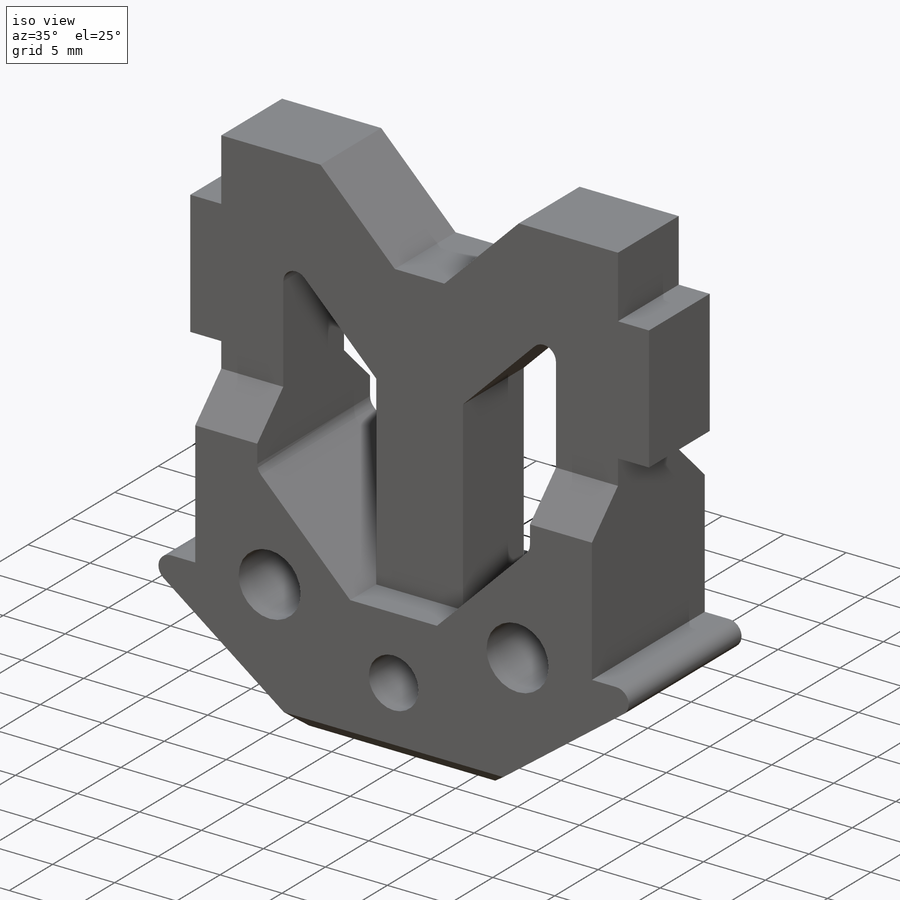
[diagram: iso view]
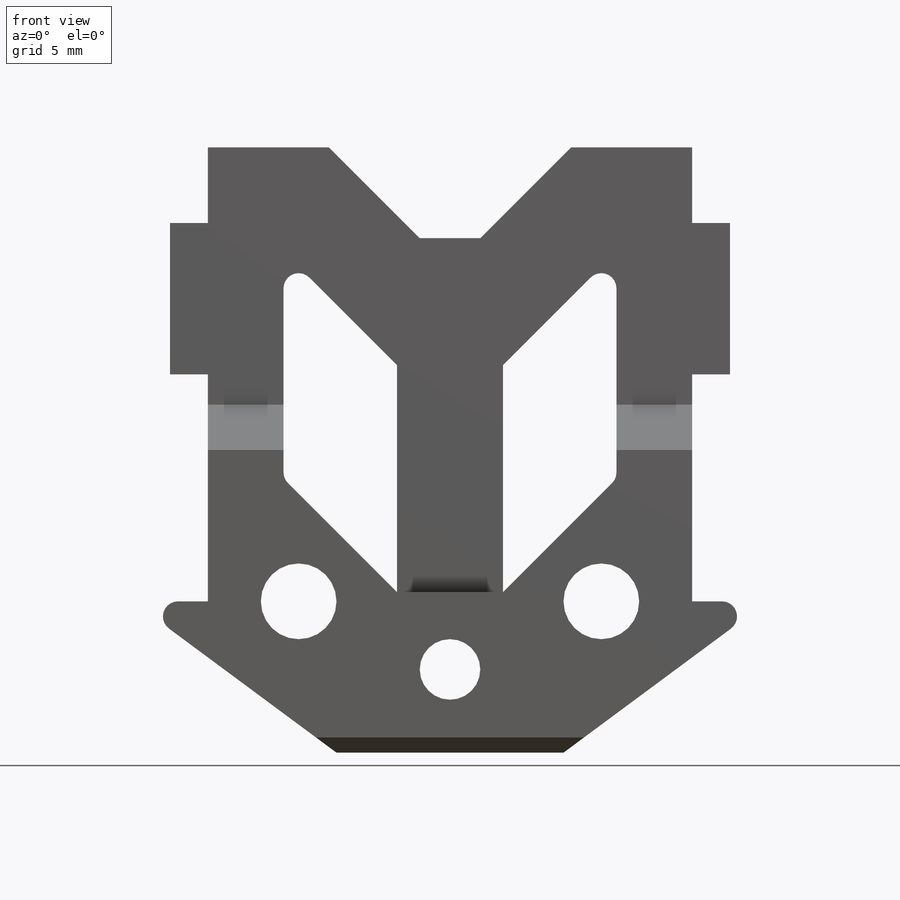
[diagram: front view]
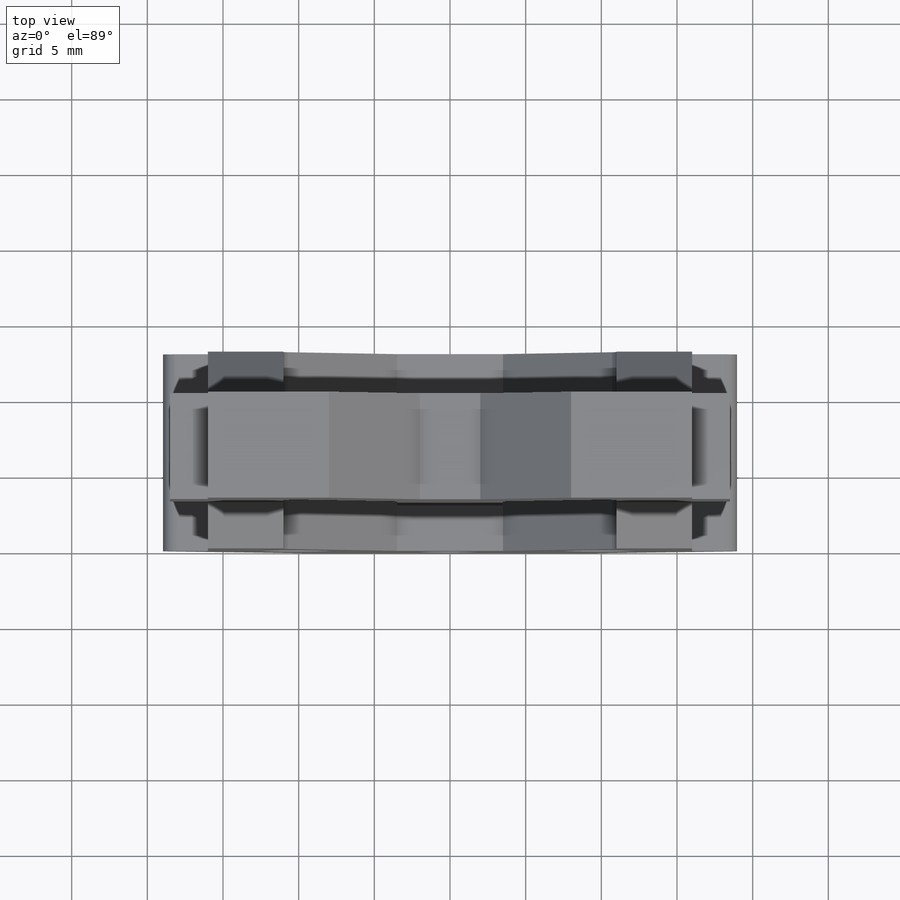
[diagram: top view]
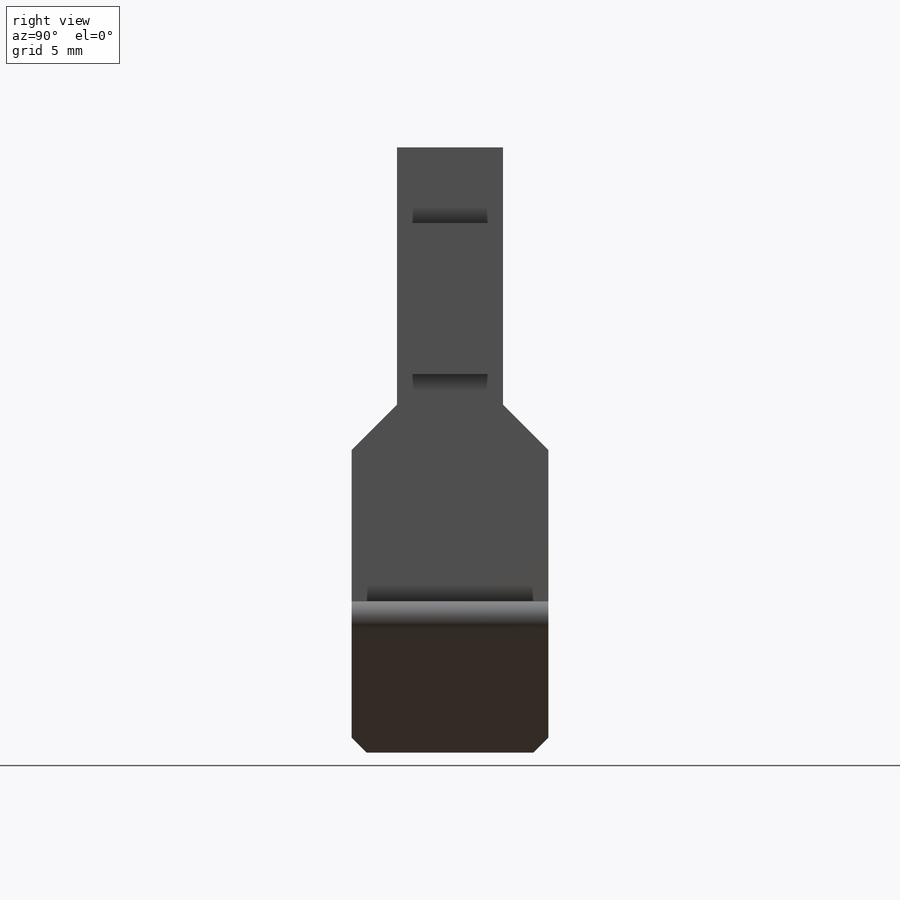
[diagram: right view]
SOLIDWORKS PART (.sldprt)
format: sldprt  version: not decoded by parser v0  size: 369,664 bytes
history: native  units: mm
features: sketch x7, cut_extrude x5, plane x3, extrude x2, fillet x2, material x1, chamfer x1 (+10 scaffold rows collapsed)
feature tree (31):
  scaffold x10  (default folders/planes/origin — collapsed)
  material  "Material <not specified>"
  plane  "Plan de face"
  plane  "Plan de dessus"
  plane  "Plan de droite"
  sketch  "Esquisse1"  dims[c1.D1=32.0mm c1.D2=32.0mm c2.D1=5.0mm c2.D3=~6.017531mm c3.D3=135.0deg c3.D4=15.0mm c3.D5=10.0mm c3.D6=32.0mm c4.D3=5.0mm c4.D2=~9.327971mm c5.D2=135.0deg c5.D3=8.0mm c5.D7=8.0mm c5.D8=4.0mm c5.D9=30.0mm c5.D10=2.5mm c5.D11=10.0mm c5.D12=15.0mm]
  extrude  "Boss.-Extru.1"  Depth=7mm
  sketch  "Esquisse2"  dims[D2=20.0mm D1=0.0mm]
  extrude  "Boss.-Extru.2"  Depth=3mm
  sketch  "Esquisse3"  dims[c1.D1=7.0mm c1.D2=5.0mm c1.D3=7.0mm c1.D4=15.0mm c2.D3=7.0mm c2.D2=5.0mm c2.D5=15.0mm]
  cut_extrude  "Enlèv. mat.-Extru.1"  [1 undecoded]
  sketch  "Esquisse4"
  cut_extrude  "Enlèv. mat.-Extru.4"  [1 undecoded]
  sketch  "Esquisse4<4>"
  cut_extrude  "Enlèv. mat.-Extru.2"  [1 undecoded]
  chamfer  "Chanfrein1"  Distance=3mm Angle=45deg
  fillet  "Congé1"  Radius=1mm
  sketch  "Esquisse5"  dims[D1=9.6mm]
  cut_extrude  "Enlèv. mat.-Extru.5"  Depth=1mm
  sketch  "Esquisse6"  dims[D1=5.0mm D2=4.0mm D3=5.5mm D4=10.0mm D5=10.0mm]
  cut_extrude  "Enlèv. mat.-Extru.6"  [1 undecoded]
  fillet  "Chanfrein2"  Radius=1mm
decode coverage: 11 of 17 modeling features carry decoded parameters
note: ~ marks probable driven/reference dimensions
note: 4 parameter values undecoded
summary: no parameter record found for 4 features
note: suppression state not decoded; provenance and decode notes live in map.json
